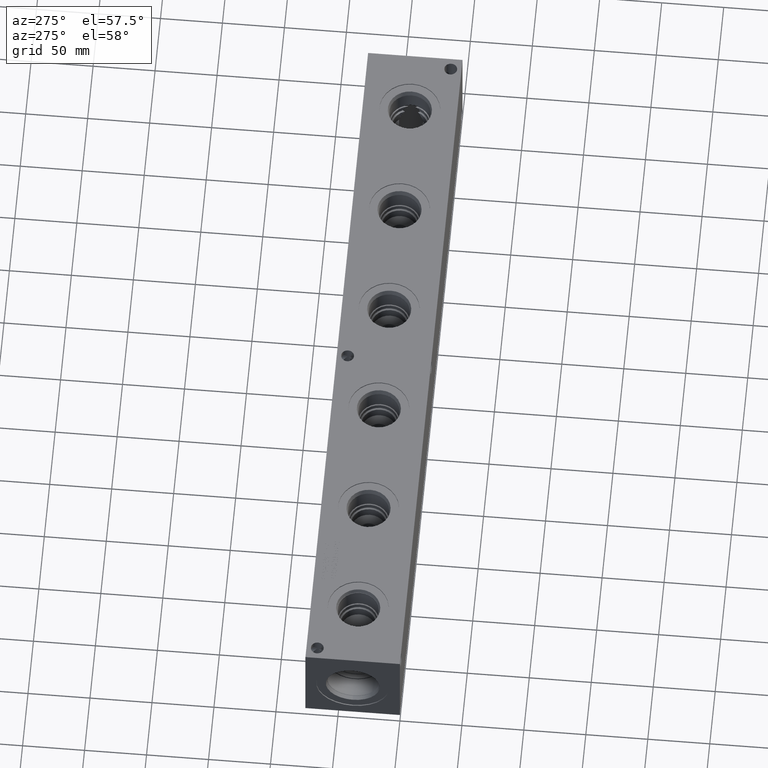
[diagram: clean part render]
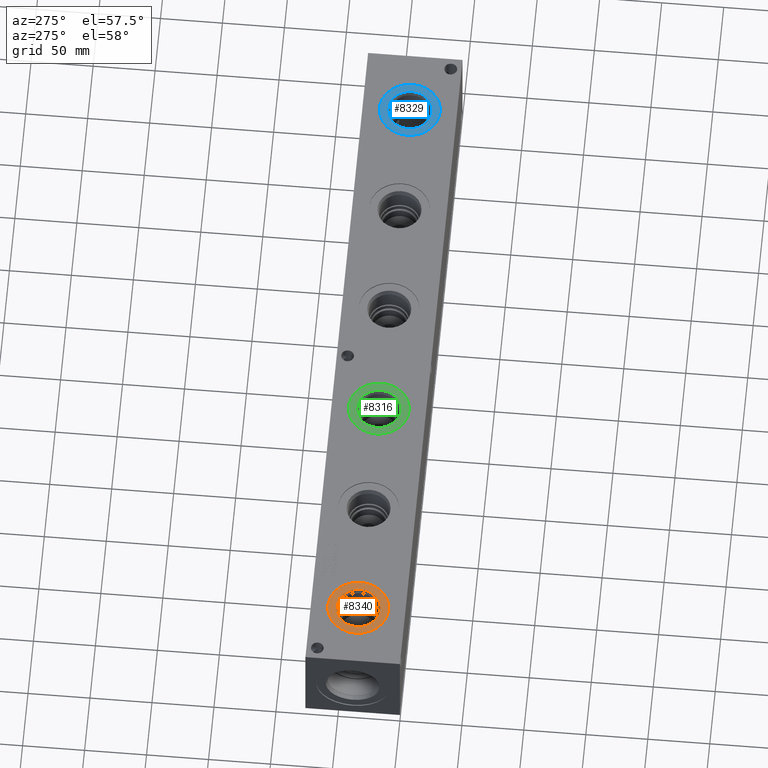
[diagram: same view with three faces highlighted in distinct colors, each labeled with its STEP entity id]
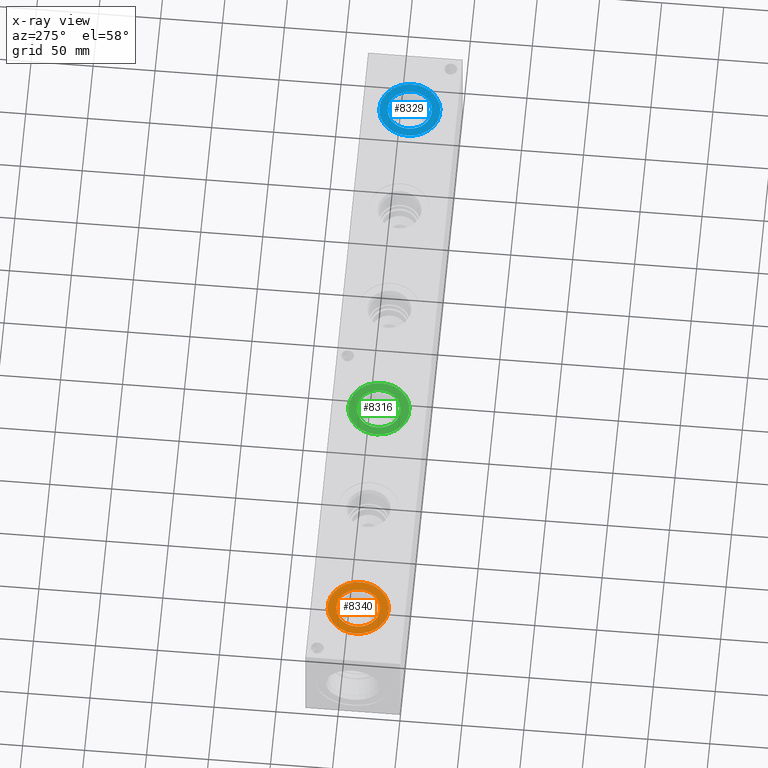
[diagram: x-ray of the same camera — body ghosted, the three highlighted faces saturated]
A machine part, auxiliary view with three faces highlighted in distinct colors.
The next image is the same camera in x-ray (body ghosted, the three faces saturated) — at least one of them is partly hidden behind the body in this view.
Their STEP definitions:

[orange] entity #8340 — the highlighted planar face has unit normal (0, 0, -1).
#267=CIRCLE('',#8824,24.5618);
#268=CIRCLE('',#8825,24.5618);
#269=CIRCLE('',#8827,17.7546);
#270=CIRCLE('',#8828,17.7546);
#354=FACE_BOUND('',#1615,.T.);
#1134=FACE_OUTER_BOUND('',#1614,.T.);
#1614=EDGE_LOOP('',(#7252,#7253));
#1615=EDGE_LOOP('',(#7254,#7255));
#3856=VERTEX_POINT('',#14585);
#3857=VERTEX_POINT('',#14587);
#3858=VERTEX_POINT('',#14591);
#3859=VERTEX_POINT('',#14592);
#5005=EDGE_CURVE('',#3856,#3857,#267,.T.);
#5006=EDGE_CURVE('',#3857,#3856,#268,.T.);
#5007=EDGE_CURVE('',#3858,#3859,#269,.T.);
#5008=EDGE_CURVE('',#3859,#3858,#270,.T.);
#7252=ORIENTED_EDGE('',*,*,#5006,.F.);
#7253=ORIENTED_EDGE('',*,*,#5005,.F.);
#7254=ORIENTED_EDGE('',*,*,#5007,.T.);
#7255=ORIENTED_EDGE('',*,*,#5008,.T.);
#7623=PLANE('',#8826);
#8340=ADVANCED_FACE('',(#1134,#354),#7623,.F.);
#8824=AXIS2_PLACEMENT_3D('',#14588,#10481,#10482);
#8825=AXIS2_PLACEMENT_3D('',#14589,#10483,#10484);
#8826=AXIS2_PLACEMENT_3D('',#14590,#10485,#10486);
#8827=AXIS2_PLACEMENT_3D('',#14593,#10487,#10488);
#8828=AXIS2_PLACEMENT_3D('',#14594,#10489,#10490);
#10481=DIRECTION('center_axis',(0.,0.,-1.));
#10482=DIRECTION('ref_axis',(1.,0.,0.));
#10483=DIRECTION('center_axis',(0.,0.,-1.));
#10484=DIRECTION('ref_axis',(1.,0.,0.));
#10485=DIRECTION('center_axis',(0.,0.,-1.));
#10486=DIRECTION('ref_axis',(-1.,0.,0.));
#10487=DIRECTION('center_axis',(0.,0.,-1.));
#10488=DIRECTION('ref_axis',(1.,0.,0.));
#10489=DIRECTION('center_axis',(0.,0.,-1.));
#10490=DIRECTION('ref_axis',(1.,0.,0.));
#14585=CARTESIAN_POINT('',(26.2382,38.1,75.4126));
#14587=CARTESIAN_POINT('',(75.3618,38.1,75.4126));
#14588=CARTESIAN_POINT('Origin',(50.8,38.1,75.4126));
#14589=CARTESIAN_POINT('Origin',(50.8,38.1,75.4126));
#14590=CARTESIAN_POINT('Origin',(68.5546,38.1,75.4126));
#14591=CARTESIAN_POINT('',(68.5546,38.1,75.4126));
#14592=CARTESIAN_POINT('',(33.0454,38.1,75.4126));
#14593=CARTESIAN_POINT('Origin',(50.8,38.1,75.4126));
#14594=CARTESIAN_POINT('Origin',(50.8,38.1,75.4126));

[blue] entity #8329 — the highlighted planar face has unit normal (0, 0, 1).
#256=CIRCLE('',#8803,24.5618);
#257=CIRCLE('',#8804,24.5618);
#258=CIRCLE('',#8805,17.7546);
#353=FACE_BOUND('',#1603,.T.);
#1123=FACE_OUTER_BOUND('',#1602,.T.);
#1602=EDGE_LOOP('',(#7191,#7192));
#1603=EDGE_LOOP('',(#7193));
#3836=VERTEX_POINT('',#14444);
#3837=VERTEX_POINT('',#14445);
#3838=VERTEX_POINT('',#14448);
#4975=EDGE_CURVE('',#3836,#3837,#256,.T.);
#4976=EDGE_CURVE('',#3837,#3836,#257,.T.);
#4977=EDGE_CURVE('',#3838,#3838,#258,.T.);
#7191=ORIENTED_EDGE('',*,*,#4975,.T.);
#7192=ORIENTED_EDGE('',*,*,#4976,.T.);
#7193=ORIENTED_EDGE('',*,*,#4977,.F.);
#7621=PLANE('',#8802);
#8329=ADVANCED_FACE('',(#1123,#353),#7621,.T.);
#8802=AXIS2_PLACEMENT_3D('',#14443,#10430,#10431);
#8803=AXIS2_PLACEMENT_3D('',#14446,#10432,#10433);
#8804=AXIS2_PLACEMENT_3D('',#14447,#10434,#10435);
#8805=AXIS2_PLACEMENT_3D('',#14449,#10436,#10437);
#10430=DIRECTION('center_axis',(0.,0.,1.));
#10431=DIRECTION('ref_axis',(1.,0.,0.));
#10432=DIRECTION('center_axis',(0.,0.,1.));
#10433=DIRECTION('ref_axis',(1.,0.,0.));
#10434=DIRECTION('center_axis',(0.,0.,1.));
#10435=DIRECTION('ref_axis',(1.,0.,0.));
#10436=DIRECTION('center_axis',(0.,0.,1.));
#10437=DIRECTION('ref_axis',(1.,0.,0.));
#14443=CARTESIAN_POINT('Origin',(527.05,38.1,75.4126));
#14444=CARTESIAN_POINT('',(551.6118,38.1,75.4126));
#14445=CARTESIAN_POINT('',(502.4882,38.1,75.4126));
#14446=CARTESIAN_POINT('Origin',(527.05,38.1,75.4126));
#14447=CARTESIAN_POINT('Origin',(527.05,38.1,75.4126));
#14448=CARTESIAN_POINT('',(509.2954,38.1,75.4126));
#14449=CARTESIAN_POINT('Origin',(527.05,38.1,75.4126));

[green] entity #8316 — the highlighted planar face has unit normal (0, 0, 1).
#247=CIRCLE('',#8781,24.5618);
#248=CIRCLE('',#8782,24.5618);
#249=CIRCLE('',#8783,17.7546);
#350=FACE_BOUND('',#1587,.T.);
#1110=FACE_OUTER_BOUND('',#1586,.T.);
#1586=EDGE_LOOP('',(#7136,#7137));
#1587=EDGE_LOOP('',(#7138));
#3824=VERTEX_POINT('',#14401);
#3825=VERTEX_POINT('',#14402);
#3826=VERTEX_POINT('',#14405);
#4957=EDGE_CURVE('',#3824,#3825,#247,.T.);
#4958=EDGE_CURVE('',#3825,#3824,#248,.T.);
#4959=EDGE_CURVE('',#3826,#3826,#249,.T.);
#7136=ORIENTED_EDGE('',*,*,#4957,.T.);
#7137=ORIENTED_EDGE('',*,*,#4958,.T.);
#7138=ORIENTED_EDGE('',*,*,#4959,.F.);
#7618=PLANE('',#8780);
#8316=ADVANCED_FACE('',(#1110,#350),#7618,.T.);
#8780=AXIS2_PLACEMENT_3D('',#14400,#10377,#10378);
#8781=AXIS2_PLACEMENT_3D('',#14403,#10379,#10380);
#8782=AXIS2_PLACEMENT_3D('',#14404,#10381,#10382);
#8783=AXIS2_PLACEMENT_3D('',#14406,#10383,#10384);
#10377=DIRECTION('center_axis',(0.,0.,1.));
#10378=DIRECTION('ref_axis',(1.,0.,0.));
#10379=DIRECTION('center_axis',(0.,0.,1.));
#10380=DIRECTION('ref_axis',(1.,0.,0.));
#10381=DIRECTION('center_axis',(0.,0.,1.));
#10382=DIRECTION('ref_axis',(1.,0.,0.));
#10383=DIRECTION('center_axis',(0.,0.,1.));
#10384=DIRECTION('ref_axis',(1.,0.,0.));
#14400=CARTESIAN_POINT('Origin',(241.3,38.1,75.4126));
#14401=CARTESIAN_POINT('',(265.8618,38.1,75.4126));
#14402=CARTESIAN_POINT('',(216.7382,38.1,75.4126));
#14403=CARTESIAN_POINT('Origin',(241.3,38.1,75.4126));
#14404=CARTESIAN_POINT('Origin',(241.3,38.1,75.4126));
#14405=CARTESIAN_POINT('',(223.5454,38.1,75.4126));
#14406=CARTESIAN_POINT('Origin',(241.3,38.1,75.4126));